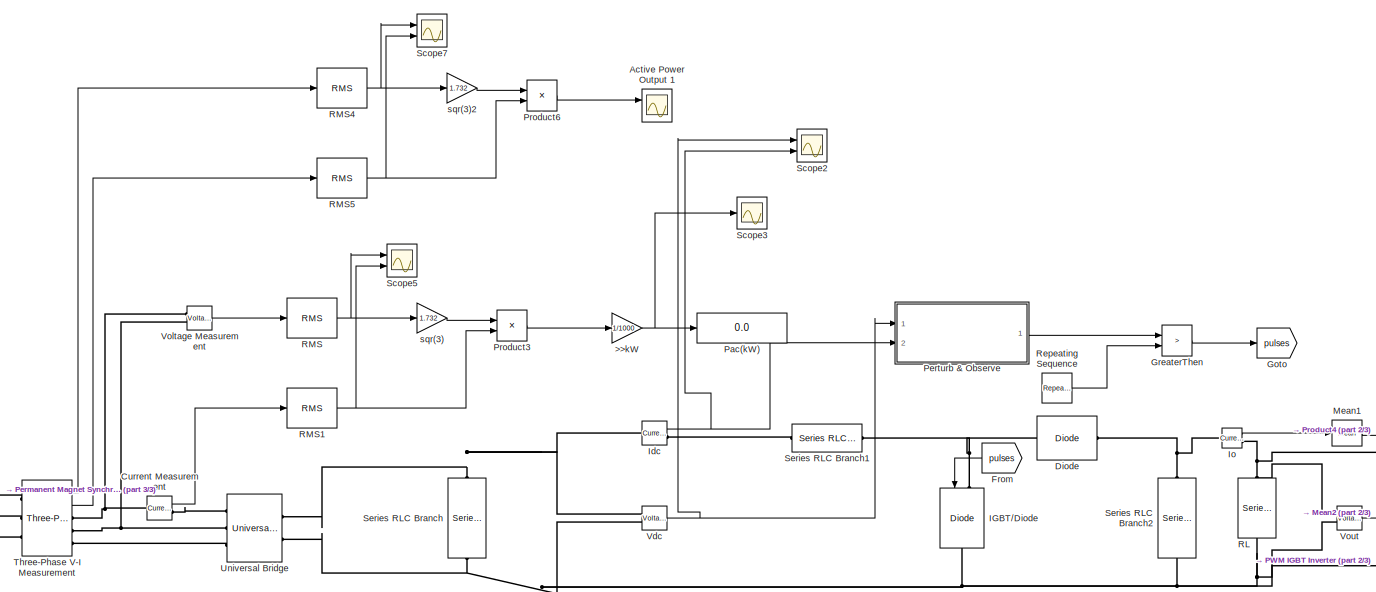
[diagram: root canvas - part 1/3, top center region]
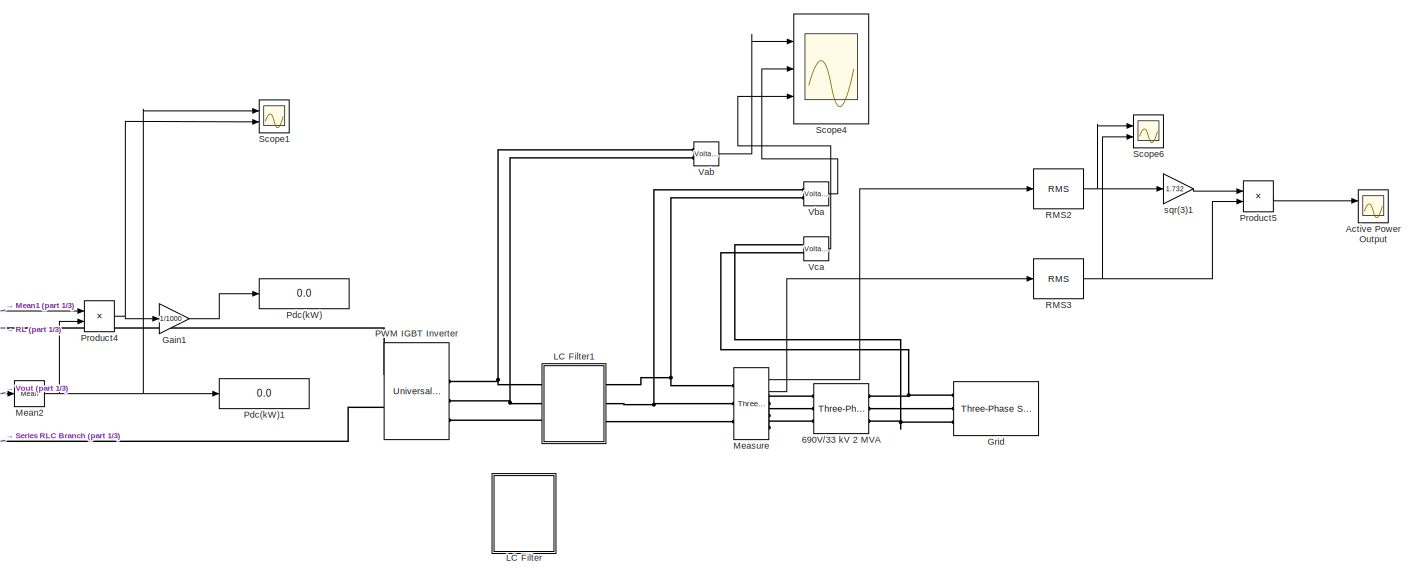
[diagram: root canvas - part 2/3, middle right region]
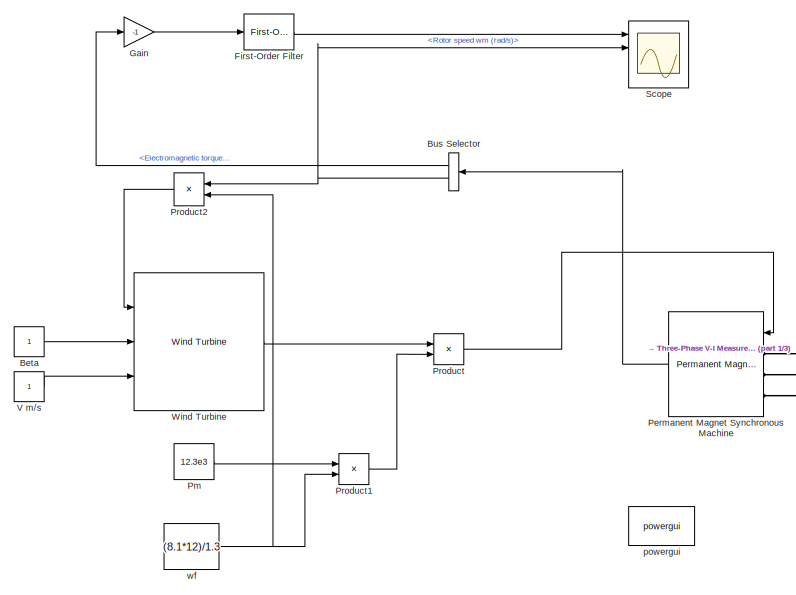
[diagram: root canvas - part 3/3, middle left region]
MODEL slx_645bc8f9d8af
KIND model
CONFIG AbsTol = auto
CONFIG EnableMultiTasking = off
CONFIG FixedStep = auto
CONFIG MaxStep = 1e-4
CONFIG MinStep = auto
CONFIG RelTol = 1e-3
CONFIG SampleTimeConstraint = Unconstrained
CONFIG Solver = VariableStepAuto
CONFIG SolverName = VariableStepAuto
CONFIG StartTime = 0.0
CONFIG StopTime = 0.1
BLOCK [Reference] 690V//33 kV 2 MVA  REF=powerlib/Elements/Three-Phase
Transformer
(Two Windings)
  AttributesFormatString = \n
  Ports = [0, 0, 0, 0, 0, 3, 3]
  SourceBlock = powerlib/Elements/Three-Phase\nTransformer\n(Two Windings)
  SourceProductBaseCode = PS
  SourceProductName = Simscape Power Systems
  SourceType = Three-Phase Transformer (Two Windings)
BLOCK [Gain] >>kW
  Gain = 1/1000
  OutDataTypeStr = Inherit: Inherit via internal rule
  ParamDataTypeStr = Inherit: Inherit via internal rule
  SaturateOnIntegerOverflow = off
BLOCK [Scope] Active Power Output 
  NumInputPorts = 2
  Ports = [2]
  ScopeSpecificationString = Simulink.scopes.TimeScopeBlockCfg('CurrentConfiguration', extmgr.ConfigurationSet(extmgr.Configuration('Core','General UI',true),extmgr.Configuration('Core','Source UI',true),extmgr.Configuration('Sources','WiredSimulink',true,'DataLoggingVariableName','ScopeData6'),extmgr.Configuration('Visuals','Time Domain',true,'SerializedDisplays',{struct('MinYLimReal','-103075.65','MaxYLimReal','927680.85','...<+1480ch>
BLOCK [Scope] Active Power Output 1
  NumInputPorts = 2
  Ports = [2]
  ScopeSpecificationString = Simulink.scopes.TimeScopeBlockCfg('CurrentConfiguration', extmgr.ConfigurationSet(extmgr.Configuration('Core','General UI',true),extmgr.Configuration('Core','Source UI',true),extmgr.Configuration('Sources','WiredSimulink',true,'DataLoggingVariableName','ScopeData1'),extmgr.Configuration('Visuals','Time Domain',true,'SerializedDisplays',{struct('MinYLimReal','-103075.65','MaxYLimReal','927680.85','...<+1480ch>
BLOCK [Constant] Beta
BLOCK [BusSelector] Bus Selector
  OutputAsBus = off
  OutputSignals = Electromagnetic torque Te (N*m),Rotor speed wm (rad/s)
  Ports = [1, 2]
BLOCK [Reference] Current Measurement  REF=powerlib/Measurements/Current Measurement
  Ports = [0, 1, 0, 0, 0, 1, 1]
  SourceBlock = powerlib/Measurements/Current Measurement
  SourceProductBaseCode = PS
  SourceProductName = Simscape Power Systems
  SourceType = Current Measurement
  UserDataPersistent = on
BLOCK [Reference] Diode  REF=powerlib/Power
Electronics/Diode
  Ports = [0, 0, 0, 0, 0, 1, 1]
  SourceBlock = powerlib/Power\nElectronics/Diode
  SourceProductBaseCode = PS
  SourceProductName = Simscape Power Systems
  SourceType = Diode
BLOCK [Reference] First-Order Filter  REF=powerlib_meascontrol/Filters/First-Order
Filter
  Ports = [1, 1]
  SourceBlock = powerlib_meascontrol/Filters/First-Order\nFilter
  SourceProductBaseCode = PS
  SourceProductName = Simscape Power Systems
  SourceType = First-Order Filter
BLOCK [From] From
  GotoTag = pulses
BLOCK [Gain] Gain
  Gain = -1
  OutDataTypeStr = Inherit: Inherit via internal rule
  ParamDataTypeStr = Inherit: Inherit via internal rule
  SaturateOnIntegerOverflow = off
BLOCK [Gain] Gain1
  Gain = 1/1000
  OutDataTypeStr = Inherit: Inherit via internal rule
  ParamDataTypeStr = Inherit: Inherit via internal rule
  SaturateOnIntegerOverflow = off
BLOCK [Goto] Goto
  GotoTag = pulses
BLOCK [RelationalOperator] GreaterThen
  InputSameDT = off
  Operator = >
  OutDataTypeStr = boolean
  Ports = [2, 1]
  RndMeth = Simplest
BLOCK [Reference] Grid  REF=powerlib/Electrical
Sources/Three-Phase Source
  Ports = [0, 0, 0, 0, 0, 0, 3]
  SourceBlock = powerlib/Electrical\nSources/Three-Phase Source
  SourceProductBaseCode = PS
  SourceProductName = Simscape Power Systems
  SourceType = Three-Phase Source
BLOCK [Reference] IGBT//Diode  REF=powerlib/Power
Electronics/IGBT//Diode
  Ports = [1, 0, 0, 0, 0, 1, 1]
  SourceBlock = powerlib/Power\nElectronics/IGBT//Diode
  SourceProductBaseCode = PS
  SourceProductName = Simscape Power Systems
  SourceType = IGBT/Diode
BLOCK [Reference] Idc  REF=powerlib/Measurements/Current Measurement
  Ports = [0, 1, 0, 0, 0, 1, 1]
  SourceBlock = powerlib/Measurements/Current Measurement
  SourceProductBaseCode = PS
  SourceProductName = Simscape Power Systems
  SourceType = Current Measurement
  UserDataPersistent = on
BLOCK [Reference] Io  REF=powerlib/Measurements/Current Measurement
  Ports = [0, 1, 0, 0, 0, 1, 1]
  SourceBlock = powerlib/Measurements/Current Measurement
  SourceProductBaseCode = PS
  SourceProductName = Simscape Power Systems
  SourceType = Current Measurement
  UserDataPersistent = on
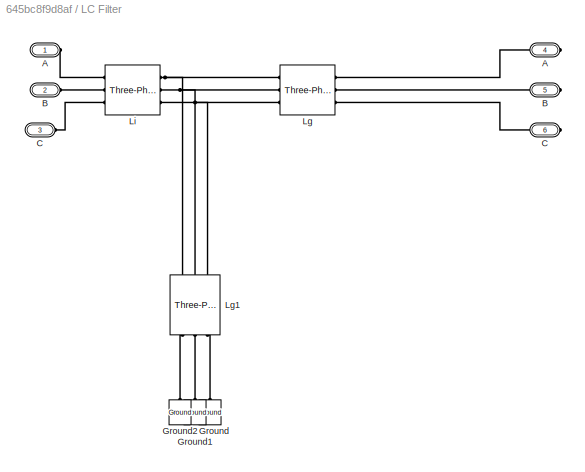
BLOCK [SubSystem] LC Filter
  Ports = [0, 0, 0, 0, 0, 3, 3]
  RequestExecContextInheritance = off
  Variant = off
BLOCK [PMIOPort] LC Filter/A
  Port = 1
  Side = Left
BLOCK [PMIOPort] LC Filter/A 
  Port = 4
  Side = Right
BLOCK [PMIOPort] LC Filter/B
  Port = 2
  Side = Left
BLOCK [PMIOPort] LC Filter/B 
  Port = 5
  Side = Right
BLOCK [PMIOPort] LC Filter/C
  Port = 3
  Side = Left
BLOCK [PMIOPort] LC Filter/C 
  Port = 6
  Side = Right
BLOCK [Reference] LC Filter/Ground  REF=powerlib/Elements/Ground
  Ports = [0, 0, 0, 0, 0, 1]
  SourceBlock = powerlib/Elements/Ground
  SourceProductBaseCode = PS
  SourceProductName = Simscape Power Systems
  SourceType = Ground
BLOCK [Reference] LC Filter/Ground1  REF=powerlib/Elements/Ground
  Ports = [0, 0, 0, 0, 0, 1]
  SourceBlock = powerlib/Elements/Ground
  SourceProductBaseCode = PS
  SourceProductName = Simscape Power Systems
  SourceType = Ground
BLOCK [Reference] LC Filter/Ground2  REF=powerlib/Elements/Ground
  Ports = [0, 0, 0, 0, 0, 1]
  SourceBlock = powerlib/Elements/Ground
  SourceProductBaseCode = PS
  SourceProductName = Simscape Power Systems
  SourceType = Ground
BLOCK [Reference] LC Filter/Lg  REF=powerlib/Elements/Three-Phase
Series RLC Branch
  AttributesFormatString = \n
  Ports = [0, 0, 0, 0, 0, 3, 3]
  SourceBlock = powerlib/Elements/Three-Phase\nSeries RLC Branch
  SourceProductBaseCode = PS
  SourceProductName = Simscape Power Systems
  SourceType = Three-Phase Series RLC Branch
BLOCK [Reference] LC Filter/Lg1  REF=powerlib/Elements/Three-Phase
Series RLC Branch
  AttributesFormatString = \n
  Ports = [0, 0, 0, 0, 0, 3, 3]
  SourceBlock = powerlib/Elements/Three-Phase\nSeries RLC Branch
  SourceProductBaseCode = PS
  SourceProductName = Simscape Power Systems
  SourceType = Three-Phase Series RLC Branch
BLOCK [Reference] LC Filter/Li   REF=powerlib/Elements/Three-Phase
Series RLC Branch
  AttributesFormatString = \n
  Ports = [0, 0, 0, 0, 0, 3, 3]
  SourceBlock = powerlib/Elements/Three-Phase\nSeries RLC Branch
  SourceProductBaseCode = PS
  SourceProductName = Simscape Power Systems
  SourceType = Three-Phase Series RLC Branch
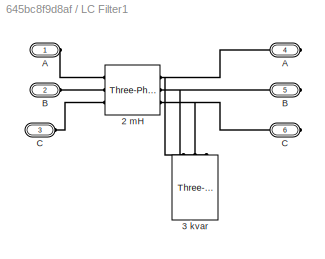
BLOCK [SubSystem] LC Filter1
  Ports = [0, 0, 0, 0, 0, 3, 3]
  RequestExecContextInheritance = off
  Variant = off
BLOCK [Reference] LC Filter1/2 mH   REF=powerlib/Elements/Three-Phase
Series RLC Branch
  AttributesFormatString = \n
  Ports = [0, 0, 0, 0, 0, 3, 3]
  SourceBlock = powerlib/Elements/Three-Phase\nSeries RLC Branch
  SourceProductBaseCode = PS
  SourceProductName = Simscape Power Systems
  SourceType = Three-Phase Series RLC Branch
BLOCK [Reference] LC Filter1/3 kvar  REF=powerlib/Elements/Three-Phase
Series RLC Load
  AttributesFormatString = \n
  Ports = [0, 0, 0, 0, 0, 3]
  SourceBlock = powerlib/Elements/Three-Phase\nSeries RLC Load
  SourceProductBaseCode = PS
  SourceProductName = Simscape Power Systems
  SourceType = Three-Phase Series RLC Load
BLOCK [PMIOPort] LC Filter1/A
  Port = 1
  Side = Left
BLOCK [PMIOPort] LC Filter1/A 
  Port = 4
  Side = Right
BLOCK [PMIOPort] LC Filter1/B
  Port = 2
  Side = Left
BLOCK [PMIOPort] LC Filter1/B 
  Port = 5
  Side = Right
BLOCK [PMIOPort] LC Filter1/C
  Port = 3
  Side = Left
BLOCK [PMIOPort] LC Filter1/C 
  Port = 6
  Side = Right
BLOCK [Reference] Mean1  REF=powerlib_meascontrol/Measurements/Mean
  Ports = [1, 1]
  SourceBlock = powerlib_meascontrol/Measurements/Mean
  SourceProductBaseCode = PS
  SourceProductName = Simscape Power Systems
  SourceType = Mean
BLOCK [Reference] Mean2  REF=powerlib_meascontrol/Measurements/Mean
  Ports = [1, 1]
  SourceBlock = powerlib_meascontrol/Measurements/Mean
  SourceProductBaseCode = PS
  SourceProductName = Simscape Power Systems
  SourceType = Mean
BLOCK [Reference] Measure  REF=powerlib/Measurements/Three-Phase
V-I Measurement
  Ports = [0, 2, 0, 0, 0, 3, 3]
  SourceBlock = powerlib/Measurements/Three-Phase\nV-I Measurement
  SourceProductBaseCode = PS
  SourceProductName = Simscape Power Systems
  SourceType = Three-Phase VI Measurement
BLOCK [Reference] PWM IGBT Inverter  REF=powerlib/Power
Electronics/Universal Bridge
  AttributesFormatString = \n
  Ports = [1, 0, 0, 0, 0, 3, 2]
  SourceBlock = powerlib/Power\nElectronics/Universal Bridge
  SourceProductBaseCode = PS
  SourceProductName = Simscape Power Systems
  SourceType = Universal Bridge
BLOCK [Display] Pac(kW)
  Decimation = 1
  Ports = [1]
BLOCK [Display] Pdc(kW)
  Decimation = 1
  Ports = [1]
BLOCK [Display] Pdc(kW)1
  Decimation = 1
  Ports = [1]
BLOCK [Reference] Permanent Magnet Synchronous Machine  REF=powerlib/Machines/Permanent Magnet
Synchronous Machine
  Ports = [1, 1, 0, 0, 0, 3]
  SourceBlock = powerlib/Machines/Permanent Magnet\nSynchronous Machine
  SourceProductBaseCode = PS
  SourceProductName = Simscape Power Systems
  SourceType = Permanent Magnet Synchronous Machine
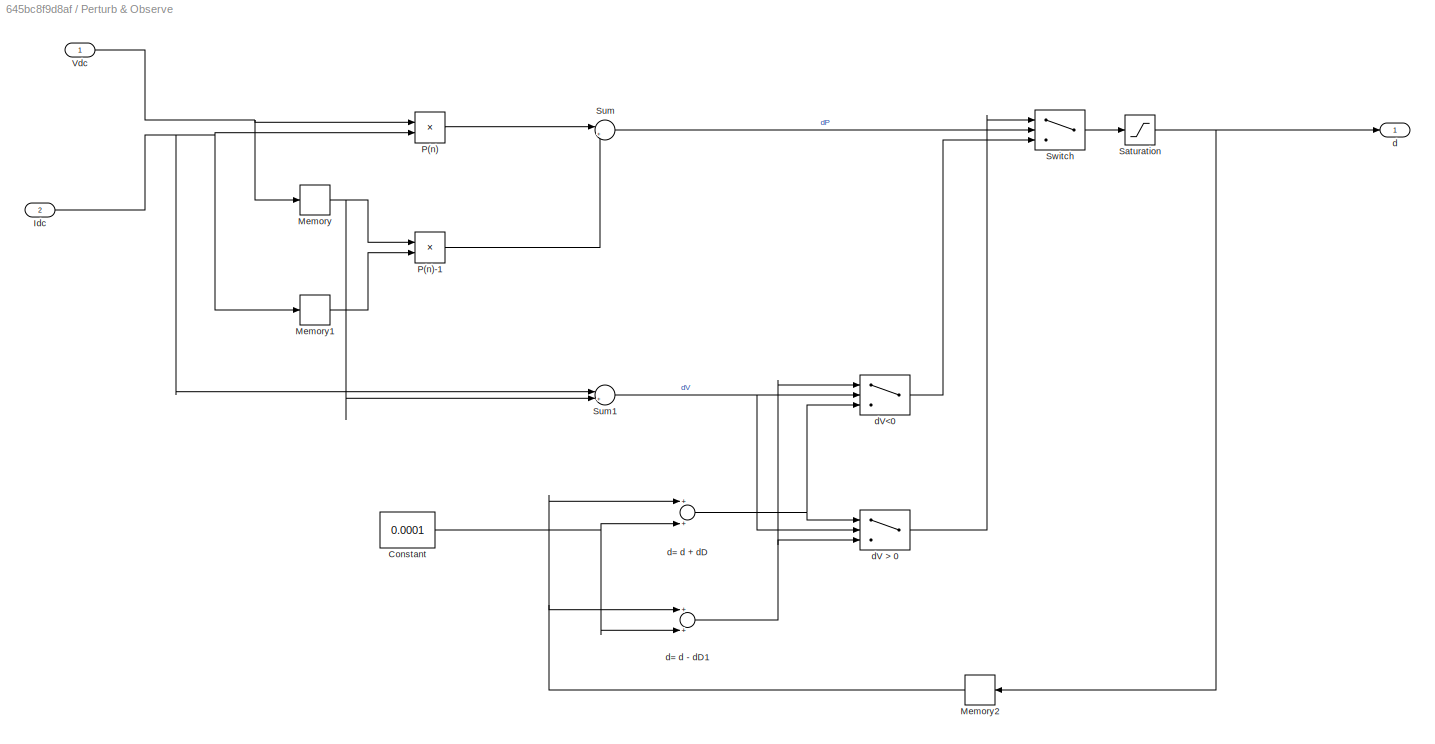
BLOCK [SubSystem] Perturb & Observe
  Ports = [2, 1]
  RequestExecContextInheritance = off
  Variant = off
BLOCK [Constant] Perturb & Observe/Constant
  Value = 0.0001
BLOCK [Inport] Perturb & Observe/Idc 
  IconDisplay = Port number
  Port = 2
BLOCK [Memory] Perturb & Observe/Memory
BLOCK [Memory] Perturb & Observe/Memory1
BLOCK [Memory] Perturb & Observe/Memory2
BLOCK [Product] Perturb & Observe/P(n)
  InputSameDT = off
  OutDataTypeStr = Inherit: Inherit via internal rule
  Ports = [2, 1]
  RndMeth = Floor
  SaturateOnIntegerOverflow = off
BLOCK [Product] Perturb & Observe/P(n)-1
  InputSameDT = off
  OutDataTypeStr = Inherit: Inherit via internal rule
  Ports = [2, 1]
  RndMeth = Floor
  SaturateOnIntegerOverflow = off
BLOCK [Saturate] Perturb & Observe/Saturation
  InputPortMap = u0
  Ports = [1, 1]
  UpperLimit = inf
BLOCK [Sum] Perturb & Observe/Sum
  IconShape = round
  InputSameDT = off
  Inputs = |++
  OutDataTypeStr = Inherit: Inherit via internal rule
  Ports = [2, 1]
  SaturateOnIntegerOverflow = off
BLOCK [Sum] Perturb & Observe/Sum1
  IconShape = round
  InputSameDT = off
  Inputs = |++
  OutDataTypeStr = Inherit: Inherit via internal rule
  Ports = [2, 1]
  SaturateOnIntegerOverflow = off
BLOCK [Switch] Perturb & Observe/Switch
  Criteria = u2 > Threshold
  InputSameDT = off
  SaturateOnIntegerOverflow = off
BLOCK [Inport] Perturb & Observe/Vdc 
  IconDisplay = Port number
BLOCK [Outport] Perturb & Observe/d
  IconDisplay = Port number
BLOCK [Sum] Perturb & Observe/d= d + dD
  InputSameDT = off
  OutDataTypeStr = Inherit: Inherit via internal rule
  Ports = [2, 1]
  SaturateOnIntegerOverflow = off
BLOCK [Sum] Perturb & Observe/d= d -  dD1
  InputSameDT = off
  OutDataTypeStr = Inherit: Inherit via internal rule
  Ports = [2, 1]
  SaturateOnIntegerOverflow = off
BLOCK [Switch] Perturb & Observe/dV > 0
  Criteria = u2 > Threshold
  InputSameDT = off
  SaturateOnIntegerOverflow = off
BLOCK [Switch] Perturb & Observe/dV<0
  Criteria = u2 > Threshold
  InputSameDT = off
  SaturateOnIntegerOverflow = off
BLOCK [Constant] Pm
  Value = 12.3e3
BLOCK [Product] Product
  InputSameDT = off
  Inputs = **
  OutDataTypeStr = Inherit: Inherit via internal rule
  Ports = [2, 1]
  RndMeth = Floor
  SaturateOnIntegerOverflow = off
BLOCK [Product] Product1
  InputSameDT = off
  Inputs = */
  OutDataTypeStr = Inherit: Inherit via internal rule
  Ports = [2, 1]
  RndMeth = Floor
  SaturateOnIntegerOverflow = off
BLOCK [Product] Product2
  InputSameDT = off
  Inputs = */
  OutDataTypeStr = Inherit: Inherit via internal rule
  Ports = [2, 1]
  RndMeth = Floor
  SaturateOnIntegerOverflow = off
BLOCK [Product] Product3
  InputSameDT = off
  OutDataTypeStr = Inherit: Inherit via internal rule
  Ports = [2, 1]
  RndMeth = Floor
  SaturateOnIntegerOverflow = off
BLOCK [Product] Product4
  InputSameDT = off
  OutDataTypeStr = Inherit: Inherit via internal rule
  Ports = [2, 1]
  RndMeth = Floor
  SaturateOnIntegerOverflow = off
BLOCK [Product] Product5
  InputSameDT = off
  OutDataTypeStr = Inherit: Inherit via internal rule
  Ports = [2, 1]
  RndMeth = Floor
  SaturateOnIntegerOverflow = off
BLOCK [Product] Product6
  InputSameDT = off
  OutDataTypeStr = Inherit: Inherit via internal rule
  Ports = [2, 1]
  RndMeth = Floor
  SaturateOnIntegerOverflow = off
BLOCK [Reference] RL  REF=powerlib/Elements/Series RLC Branch
  Ports = [0, 0, 0, 0, 0, 1, 1]
  SourceBlock = powerlib/Elements/Series RLC Branch
  SourceProductBaseCode = PS
  SourceProductName = Simscape Power Systems
  SourceType = Series RLC Branch
BLOCK [Reference] RMS  REF=powerlib_meascontrol/Measurements/RMS
  Ports = [1, 1]
  SourceBlock = powerlib_meascontrol/Measurements/RMS
  SourceProductBaseCode = PS
  SourceProductName = Simscape Power Systems
  SourceType = RMS
BLOCK [Reference] RMS1  REF=powerlib_meascontrol/Measurements/RMS
  Ports = [1, 1]
  SourceBlock = powerlib_meascontrol/Measurements/RMS
  SourceProductBaseCode = PS
  SourceProductName = Simscape Power Systems
  SourceType = RMS
BLOCK [Reference] RMS2  REF=powerlib_meascontrol/Measurements/RMS
  Ports = [1, 1]
  SourceBlock = powerlib_meascontrol/Measurements/RMS
  SourceProductBaseCode = PS
  SourceProductName = Simscape Power Systems
  SourceType = RMS
BLOCK [Reference] RMS3  REF=powerlib_meascontrol/Measurements/RMS
  Ports = [1, 1]
  SourceBlock = powerlib_meascontrol/Measurements/RMS
  SourceProductBaseCode = PS
  SourceProductName = Simscape Power Systems
  SourceType = RMS
BLOCK [Reference] RMS4  REF=powerlib_meascontrol/Measurements/RMS
  Ports = [1, 1]
  SourceBlock = powerlib_meascontrol/Measurements/RMS
  SourceProductBaseCode = PS
  SourceProductName = Simscape Power Systems
  SourceType = RMS
BLOCK [Reference] RMS5  REF=powerlib_meascontrol/Measurements/RMS
  Ports = [1, 1]
  SourceBlock = powerlib_meascontrol/Measurements/RMS
  SourceProductBaseCode = PS
  SourceProductName = Simscape Power Systems
  SourceType = RMS
BLOCK [Reference] Repeating Sequence  REF=simulink/Sources/Repeating
Sequence
  Ports = [0, 1]
  SourceBlock = simulink/Sources/Repeating\nSequence
  SourceProductBaseCode = SL
  SourceProductName = Simulink
  SourceType = Repeating table
BLOCK [Scope] Scope
  NumInputPorts = 4
  Ports = [4]
  ScopeSpecificationString = Simulink.scopes.TimeScopeBlockCfg('CurrentConfiguration', extmgr.ConfigurationSet(extmgr.Configuration('Core','General UI',true),extmgr.Configuration('Core','Source UI',true),extmgr.Configuration('Sources','WiredSimulink',true),extmgr.Configuration('Visuals','Time Domain',true,'SerializedDisplays',{struct('MinYLimReal','-0.03452','MaxYLimReal','0.05289','YLabelReal','','MinYLimMag','0.00000','MaxY...<+2075ch>
BLOCK [Scope] Scope1
  NumInputPorts = 2
  Ports = [2]
  ScopeSpecificationString = Simulink.scopes.TimeScopeBlockCfg('CurrentConfiguration', extmgr.ConfigurationSet(extmgr.Configuration('Core','General UI',true),extmgr.Configuration('Core','Source UI',true),extmgr.Configuration('Sources','WiredSimulink',true,'DataLoggingVariableName','ScopeData1'),extmgr.Configuration('Visuals','Time Domain',true,'SerializedDisplays',{struct('MinYLimReal','-4423.1405','MaxYLimReal','2459.55437',...<+1493ch>
BLOCK [Scope] Scope2
  NumInputPorts = 2
  Ports = [2]
  ScopeSpecificationString = Simulink.scopes.TimeScopeBlockCfg('CurrentConfiguration', extmgr.ConfigurationSet(extmgr.Configuration('Core','General UI',true),extmgr.Configuration('Core','Source UI',true),extmgr.Configuration('Sources','WiredSimulink',true,'DataLoggingVariableName','ScopeData2'),extmgr.Configuration('Visuals','Time Domain',true,'SerializedDisplays',{struct('MinYLimReal','-0.3162','MaxYLimReal','2.82917','YLabe...<+1420ch>
BLOCK [Scope] Scope3
  NumInputPorts = 1
  Ports = [1]
  ScopeSpecificationString = Simulink.scopes.TimeScopeBlockCfg('CurrentConfiguration', extmgr.ConfigurationSet(extmgr.Configuration('Core','General UI',true),extmgr.Configuration('Core','Source UI',true),extmgr.Configuration('Sources','WiredSimulink',true,'DataLoggingVariableName','ScopeData3'),extmgr.Configuration('Visuals','Time Domain',true,'SerializedDisplays',{struct('MinYLimReal','-91.47125','MaxYLimReal','823.24125','Y...<+1427ch>
BLOCK [Scope] Scope4
  NumInputPorts = 3
  Ports = [3]
  ScopeSpecificationString = Simulink.scopes.TimeScopeBlockCfg('CurrentConfiguration', extmgr.ConfigurationSet(extmgr.Configuration('Core','General UI',true),extmgr.Configuration('Core','Source UI',true),extmgr.Configuration('Sources','WiredSimulink',true,'DataLogging',true,'DataLoggingVariableName','psbbridges_str','DataLoggingSaveFormat','StructureWithTime','DataLoggingDecimation','1','DataLoggingDecimateData',true),extmgr....<+3064ch>
BLOCK [Scope] Scope5
  NumInputPorts = 2
  Ports = [2]
  ScopeSpecificationString = Simulink.scopes.TimeScopeBlockCfg('CurrentConfiguration', extmgr.ConfigurationSet(extmgr.Configuration('Core','General UI',true),extmgr.Configuration('Core','Source UI',true),extmgr.Configuration('Sources','WiredSimulink',true,'DataLoggingVariableName','ScopeData4'),extmgr.Configuration('Visuals','Time Domain',true,'SerializedDisplays',{struct('MinYLimReal','-81.24999','MaxYLimReal','731.25','YLab...<+1420ch>
BLOCK [Scope] Scope6
  NumInputPorts = 2
  Ports = [2]
  ScopeSpecificationString = Simulink.scopes.TimeScopeBlockCfg('CurrentConfiguration', extmgr.ConfigurationSet(extmgr.Configuration('Core','General UI',true),extmgr.Configuration('Core','Source UI',true),extmgr.Configuration('Sources','WiredSimulink',true,'DataLoggingVariableName','ScopeData5'),extmgr.Configuration('Visuals','Time Domain',true,'SerializedDisplays',{struct('MinYLimReal','-56.21408','MaxYLimReal','728.46823','Y...<+1473ch>
BLOCK [Scope] Scope7
  NumInputPorts = 2
  Ports = [2]
  ScopeSpecificationString = Simulink.scopes.TimeScopeBlockCfg('CurrentConfiguration', extmgr.ConfigurationSet(extmgr.Configuration('Core','General UI',true),extmgr.Configuration('Core','Source UI',true),extmgr.Configuration('Sources','WiredSimulink',true,'DataLoggingVariableName','ScopeData2'),extmgr.Configuration('Visuals','Time Domain',true,'SerializedDisplays',{struct('MinYLimReal','-86.25','MaxYLimReal','776.25','YLabelR...<+1455ch>
BLOCK [Reference] Series RLC Branch  REF=powerlib/Elements/Series RLC Branch
  Ports = [0, 0, 0, 0, 0, 1, 1]
  SourceBlock = powerlib/Elements/Series RLC Branch
  SourceProductBaseCode = PS
  SourceProductName = Simscape Power Systems
  SourceType = Series RLC Branch
BLOCK [Reference] Series RLC Branch1  REF=powerlib/Elements/Series RLC Branch
  Ports = [0, 0, 0, 0, 0, 1, 1]
  SourceBlock = powerlib/Elements/Series RLC Branch
  SourceProductBaseCode = PS
  SourceProductName = Simscape Power Systems
  SourceType = Series RLC Branch
BLOCK [Reference] Series RLC Branch2  REF=powerlib/Elements/Series RLC Branch
  Ports = [0, 0, 0, 0, 0, 1, 1]
  SourceBlock = powerlib/Elements/Series RLC Branch
  SourceProductBaseCode = PS
  SourceProductName = Simscape Power Systems
  SourceType = Series RLC Branch
BLOCK [Reference] Three-Phase V-I Measurement  REF=powerlib/Measurements/Three-Phase
V-I Measurement
  Ports = [0, 2, 0, 0, 0, 3, 3]
  SourceBlock = powerlib/Measurements/Three-Phase\nV-I Measurement
  SourceProductBaseCode = PS
  SourceProductName = Simscape Power Systems
  SourceType = Three-Phase VI Measurement
BLOCK [Reference] Universal Bridge  REF=powerlib/Power
Electronics/Universal Bridge
  Ports = [0, 0, 0, 0, 0, 3, 2]
  SourceBlock = powerlib/Power\nElectronics/Universal Bridge
  SourceProductBaseCode = PS
  SourceProductName = Simscape Power Systems
  SourceType = Universal Bridge
BLOCK [Constant] V m//s
BLOCK [Reference] Vab  REF=powerlib/Measurements/Voltage Measurement
  AttributesFormatString = \n
  Ports = [0, 1, 0, 0, 0, 2]
  SourceBlock = powerlib/Measurements/Voltage Measurement
  SourceProductBaseCode = PS
  SourceProductName = Simscape Power Systems
  SourceType = Voltage Measurement
  Tag = PoWeRsYsTeMmEaSuReMeNt
BLOCK [Reference] Vba  REF=powerlib/Measurements/Voltage Measurement
  AttributesFormatString = \n
  Ports = [0, 1, 0, 0, 0, 2]
  SourceBlock = powerlib/Measurements/Voltage Measurement
  SourceProductBaseCode = PS
  SourceProductName = Simscape Power Systems
  SourceType = Voltage Measurement
  Tag = PoWeRsYsTeMmEaSuReMeNt
BLOCK [Reference] Vca  REF=powerlib/Measurements/Voltage Measurement
  AttributesFormatString = \n
  Ports = [0, 1, 0, 0, 0, 2]
  SourceBlock = powerlib/Measurements/Voltage Measurement
  SourceProductBaseCode = PS
  SourceProductName = Simscape Power Systems
  SourceType = Voltage Measurement
  Tag = PoWeRsYsTeMmEaSuReMeNt
BLOCK [Reference] Vdc  REF=powerlib/Measurements/Voltage Measurement
  Ports = [0, 1, 0, 0, 0, 2]
  SourceBlock = powerlib/Measurements/Voltage Measurement
  SourceProductBaseCode = PS
  SourceProductName = Simscape Power Systems
  SourceType = Voltage Measurement
  UserDataPersistent = on
BLOCK [Reference] Voltage Measurement  REF=powerlib/Measurements/Voltage Measurement
  Ports = [0, 1, 0, 0, 0, 2]
  SourceBlock = powerlib/Measurements/Voltage Measurement
  SourceProductBaseCode = PS
  SourceProductName = Simscape Power Systems
  SourceType = Voltage Measurement
  UserDataPersistent = on
BLOCK [Reference] Vout  REF=powerlib/Measurements/Voltage Measurement
  Ports = [0, 1, 0, 0, 0, 2]
  SourceBlock = powerlib/Measurements/Voltage Measurement
  SourceProductBaseCode = PS
  SourceProductName = Simscape Power Systems
  SourceType = Voltage Measurement
  UserDataPersistent = on
BLOCK [Reference] Wind Turbine  REF=re_lib/Wind Generation/Wind Turbine
  Ports = [3, 1]
  SourceBlock = re_lib/Wind Generation/Wind Turbine
  SourceProductBaseCode = PS
  SourceProductName = Simscape Power Systems
  SourceType = Wind Turbine
BLOCK [Reference] powergui  REF=powerlib/powergui
  Ports = []
  Priority = 1
  SourceBlock = powerlib/powergui
  SourceProductBaseCode = PS
  SourceProductName = Simscape Power Systems
  SourceType = PSB option menu block
BLOCK [Gain] sqr(3)
  Gain = 1.732
  OutDataTypeStr = Inherit: Inherit via internal rule
  ParamDataTypeStr = Inherit: Inherit via internal rule
  SaturateOnIntegerOverflow = off
BLOCK [Gain] sqr(3)1
  Gain = 1.732
  OutDataTypeStr = Inherit: Inherit via internal rule
  ParamDataTypeStr = Inherit: Inherit via internal rule
  SaturateOnIntegerOverflow = off
BLOCK [Gain] sqr(3)2
  Gain = 1.732
  OutDataTypeStr = Inherit: Inherit via internal rule
  ParamDataTypeStr = Inherit: Inherit via internal rule
  SaturateOnIntegerOverflow = off
BLOCK [Constant] wf
  Value = (8.1*12)/1.3
NET >>kW:1 -> Pac(kW):1, Scope3:1
LINE Beta:1 -> Wind Turbine:2
LINE Bus Selector:1 -> Gain:1
NET Bus Selector:2 -> Product2:1, Scope:2
LINE Current Measurement:1 -> RMS1:1
LINE First-Order Filter:1 -> Scope:1
LINE From:1 -> IGBT//Diode:1
LINE Gain1:1 -> Pdc(kW):1
LINE Gain:1 -> First-Order Filter:1
LINE GreaterThen:1 -> Goto:1
NET Idc:1 -> Perturb & Observe:2, Scope2:2
LINE Io:1 -> Mean1:1
LINE Mean1:1 -> Product4:1
NET Mean2:1 -> Pdc(kW)1:1, Product4:2, Scope1:1
LINE Measure:1 -> RMS2:1
LINE Measure:2 -> RMS3:1
LINE Permanent Magnet Synchronous Machine:1 -> Bus Selector:1
NET Perturb & Observe/Constant:1 -> Perturb & Observe/d= d + dD:2, Perturb & Observe/d= d -  dD1:2
NET Perturb & Observe/Idc :1 -> Perturb & Observe/Memory1:1, Perturb & Observe/P(n):2, Perturb & Observe/Sum1:1
LINE Perturb & Observe/Memory1:1 -> Perturb & Observe/P(n)-1:2
NET Perturb & Observe/Memory2:1 -> Perturb & Observe/d= d + dD:1, Perturb & Observe/d= d -  dD1:1
NET Perturb & Observe/Memory:1 -> Perturb & Observe/P(n)-1:1, Perturb & Observe/Sum1:2
LINE Perturb & Observe/P(n)-1:1 -> Perturb & Observe/Sum:2
LINE Perturb & Observe/P(n):1 -> Perturb & Observe/Sum:1
NET Perturb & Observe/Saturation:1 -> Perturb & Observe/Memory2:1, Perturb & Observe/d:1
NET Perturb & Observe/Sum1:1 -> Perturb & Observe/dV > 0:2, Perturb & Observe/dV<0:2
LINE Perturb & Observe/Sum:1 -> Perturb & Observe/Switch:2
LINE Perturb & Observe/Switch:1 -> Perturb & Observe/Saturation:1
NET Perturb & Observe/Vdc :1 -> Perturb & Observe/Memory:1, Perturb & Observe/P(n):1
NET Perturb & Observe/d= d + dD:1 -> Perturb & Observe/dV > 0:1, Perturb & Observe/dV<0:3
NET Perturb & Observe/d= d -  dD1:1 -> Perturb & Observe/dV > 0:3, Perturb & Observe/dV<0:1
LINE Perturb & Observe/dV > 0:1 -> Perturb & Observe/Switch:1
LINE Perturb & Observe/dV<0:1 -> Perturb & Observe/Switch:3
LINE Perturb & Observe:1 -> GreaterThen:1
LINE Pm:1 -> Product1:1
LINE Product1:1 -> Product:2
LINE Product2:1 -> Wind Turbine:1
LINE Product3:1 -> >>kW:1
NET Product4:1 -> Gain1:1, Scope1:2
LINE Product5:1 -> Active Power Output :1
LINE Product6:1 -> Active Power Output 1:1
LINE Product:1 -> Permanent Magnet Synchronous Machine:1
NET RMS1:1 -> Product3:2, Scope5:2
NET RMS2:1 -> Scope6:1, sqr(3)1:1
NET RMS3:1 -> Product5:2, Scope6:2
NET RMS4:1 -> Scope7:1, sqr(3)2:1
NET RMS5:1 -> Product6:2, Scope7:2
NET RMS:1 -> Scope5:1, sqr(3):1
LINE Repeating Sequence:1 -> GreaterThen:2
LINE Three-Phase V-I Measurement:1 -> RMS4:1
LINE Three-Phase V-I Measurement:2 -> RMS5:1
LINE V m//s:1 -> Wind Turbine:3
LINE Vab:1 -> Scope4:1
LINE Vba:1 -> Scope4:2
LINE Vca:1 -> Scope4:3
NET Vdc:1 -> Perturb & Observe:1, Scope2:1
LINE Voltage Measurement:1 -> RMS:1
LINE Vout:1 -> Mean2:1
LINE Wind Turbine:1 -> Product:1
LINE sqr(3)1:1 -> Product5:1
LINE sqr(3)2:1 -> Product6:1
LINE sqr(3):1 -> Product3:1
NET wf:1 -> Product1:2, Product2:2
PLINE 690V//33 kV 2 MVA:LConn1 -- Measure:RConn1
PLINE 690V//33 kV 2 MVA:LConn2 -- Measure:RConn2
PLINE 690V//33 kV 2 MVA:LConn3 -- Measure:RConn3
PNET net1: 690V//33 kV 2 MVA:RConn1 -- Grid:RConn1 -- Vca:LConn2
PLINE 690V//33 kV 2 MVA:RConn2 -- Grid:RConn2
PNET net2: 690V//33 kV 2 MVA:RConn3 -- Grid:RConn3 -- Vca:LConn1
PNET net3: Current Measurement:LConn1 -- Three-Phase V-I Measurement:RConn1 -- Voltage Measurement:LConn1
PLINE Current Measurement:RConn1 -- Universal Bridge:LConn1
PNET net4: Diode:LConn1 -- IGBT//Diode:LConn1 -- Series RLC Branch1:RConn1
PNET net5: Diode:RConn1 -- Io:LConn1 -- Series RLC Branch2:LConn1
PNET net6: IGBT//Diode:RConn1 -- PWM IGBT Inverter:RConn2 -- RL:RConn1 -- Series RLC Branch2:RConn1 -- Series RLC Branch:RConn1 -- Universal Bridge:RConn2 -- Vdc:LConn2 -- Vout:LConn2
PNET net7: Idc:LConn1 -- Series RLC Branch:LConn1 -- Universal Bridge:RConn1 -- Vdc:LConn1
PLINE Idc:RConn1 -- Series RLC Branch1:LConn1
PNET net8: Io:RConn1 -- PWM IGBT Inverter:RConn1 -- RL:LConn1 -- Vout:LConn1
PLINE LC Filter/A :RConn1 -- LC Filter/Lg:RConn1
PLINE LC Filter/A:RConn1 -- LC Filter/Li :LConn1
PLINE LC Filter/B :RConn1 -- LC Filter/Lg:RConn2
PLINE LC Filter/B:RConn1 -- LC Filter/Li :LConn2
PLINE LC Filter/C :RConn1 -- LC Filter/Lg:RConn3
PLINE LC Filter/C:RConn1 -- LC Filter/Li :LConn3
PLINE LC Filter/Ground1:LConn1 -- LC Filter/Lg1:RConn2
PLINE LC Filter/Ground2:LConn1 -- LC Filter/Lg1:RConn1
PLINE LC Filter/Ground:LConn1 -- LC Filter/Lg1:RConn3
PNET net9: LC Filter/Lg1:LConn1 -- LC Filter/Lg:LConn1 -- LC Filter/Li :RConn1
PNET net10: LC Filter/Lg1:LConn2 -- LC Filter/Lg:LConn2 -- LC Filter/Li :RConn2
PNET net11: LC Filter/Lg1:LConn3 -- LC Filter/Lg:LConn3 -- LC Filter/Li :RConn3
PLINE LC Filter1/2 mH :LConn1 -- LC Filter1/A:RConn1
PLINE LC Filter1/2 mH :LConn2 -- LC Filter1/B:RConn1
PLINE LC Filter1/2 mH :LConn3 -- LC Filter1/C:RConn1
PNET net12: LC Filter1/2 mH :RConn1 -- LC Filter1/3 kvar:LConn1 -- LC Filter1/A :RConn1
PNET net13: LC Filter1/2 mH :RConn2 -- LC Filter1/3 kvar:LConn2 -- LC Filter1/B :RConn1
PNET net14: LC Filter1/2 mH :RConn3 -- LC Filter1/3 kvar:LConn3 -- LC Filter1/C :RConn1
PNET net15: LC Filter1:LConn1 -- PWM IGBT Inverter:LConn1 -- Vab:LConn1
PNET net16: LC Filter1:LConn2 -- PWM IGBT Inverter:LConn2 -- Vab:LConn2
PLINE LC Filter1:LConn3 -- PWM IGBT Inverter:LConn3
PNET net17: LC Filter1:RConn1 -- Measure:LConn1 -- Vba:LConn2
PNET net18: LC Filter1:RConn2 -- Measure:LConn2 -- Vba:LConn1
PLINE LC Filter1:RConn3 -- Measure:LConn3
PLINE Permanent Magnet Synchronous Machine:LConn1 -- Three-Phase V-I Measurement:LConn1
PLINE Permanent Magnet Synchronous Machine:LConn2 -- Three-Phase V-I Measurement:LConn2
PLINE Permanent Magnet Synchronous Machine:LConn3 -- Three-Phase V-I Measurement:LConn3
PNET net19: Three-Phase V-I Measurement:RConn2 -- Universal Bridge:LConn2 -- Voltage Measurement:LConn2
PLINE Three-Phase V-I Measurement:RConn3 -- Universal Bridge:LConn3
note: NET lines group one-source signal fan-out (src -> all destinations, sorted); 1:1 wires keep LINE; PNET lines group multi-terminal physical nets as a canonical sorted terminal list (undirected conserving connections); 2-terminal nets keep the pairwise PLINE form
